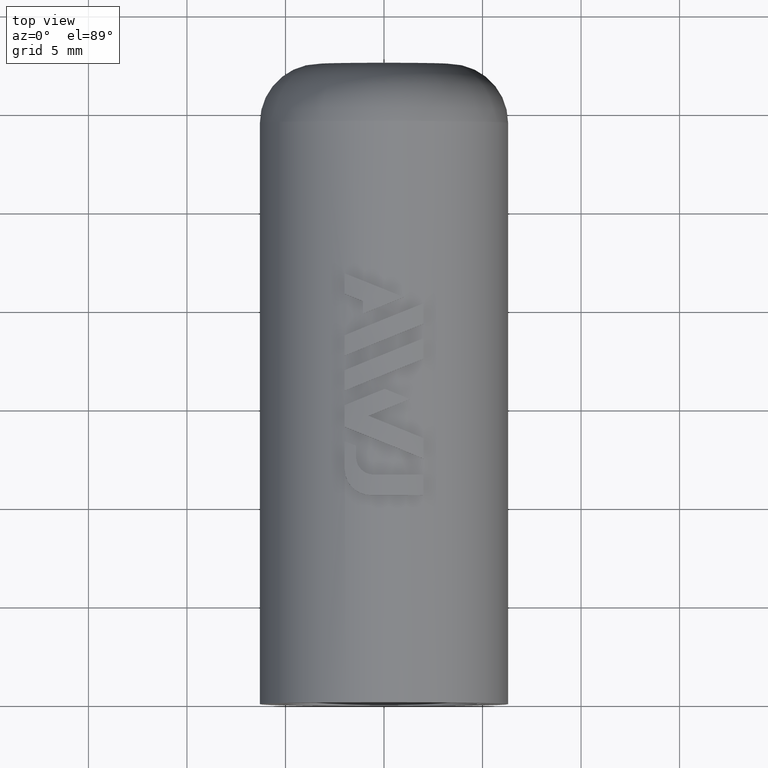
[diagram: clean part render]
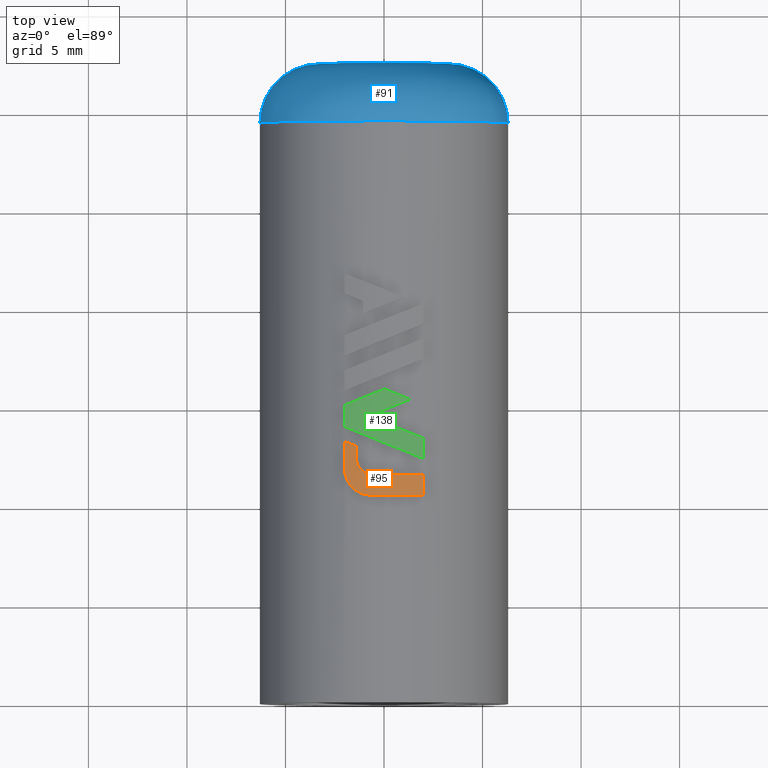
[diagram: same view with three faces highlighted in distinct colors, each labeled with its STEP entity id]
A machine part, top view with three faces highlighted in distinct colors.
Their STEP definitions:

[orange] entity #95 — the highlighted cylindrical surface (partial cylindrical patch) has radius 6.5 mm, axis along (-0, 1, 0).
#95=ADVANCED_FACE('',(#191),#192,.T.);
#191=FACE_OUTER_BOUND('',#2262,.T.);
#192=CYLINDRICAL_SURFACE('',#2263,6.5);
#2262=EDGE_LOOP('',(#2482,#2483,#2484,#2485,#2486,#2487,#2488,#2489,#2490,#2491,#2492,#2493,#2494,#2495,#2496,#2497,#2498,#2499,#2500,#2501,#2502,#2503,#2504,#2505,#2506,#2507,#2508,#2509,#2510,#2511,#2512,#2513,#2514,#2515,#2516,#2517,#2518,#2519,#2520,#2521));
#2263=AXIS2_PLACEMENT_3D('',#2522,#2523,#2524);
#2482=ORIENTED_EDGE('',*,*,#3117,.T.);
#2483=ORIENTED_EDGE('',*,*,#3118,.T.);
#2484=ORIENTED_EDGE('',*,*,#3119,.T.);
#2485=ORIENTED_EDGE('',*,*,#3120,.T.);
#2486=ORIENTED_EDGE('',*,*,#3121,.T.);
#2487=ORIENTED_EDGE('',*,*,#3122,.T.);
#2488=ORIENTED_EDGE('',*,*,#3123,.T.);
#2489=ORIENTED_EDGE('',*,*,#3124,.T.);
#2490=ORIENTED_EDGE('',*,*,#3125,.T.);
#2491=ORIENTED_EDGE('',*,*,#3126,.T.);
#2492=ORIENTED_EDGE('',*,*,#3127,.T.);
#2493=ORIENTED_EDGE('',*,*,#3128,.T.);
#2494=ORIENTED_EDGE('',*,*,#3129,.T.);
#2495=ORIENTED_EDGE('',*,*,#3130,.T.);
#2496=ORIENTED_EDGE('',*,*,#3131,.T.);
#2497=ORIENTED_EDGE('',*,*,#3132,.T.);
#2498=ORIENTED_EDGE('',*,*,#3133,.T.);
#2499=ORIENTED_EDGE('',*,*,#3134,.T.);
#2500=ORIENTED_EDGE('',*,*,#3135,.T.);
#2501=ORIENTED_EDGE('',*,*,#3136,.T.);
#2502=ORIENTED_EDGE('',*,*,#3137,.T.);
#2503=ORIENTED_EDGE('',*,*,#3138,.T.);
#2504=ORIENTED_EDGE('',*,*,#3139,.T.);
#2505=ORIENTED_EDGE('',*,*,#3140,.T.);
#2506=ORIENTED_EDGE('',*,*,#3141,.T.);
#2507=ORIENTED_EDGE('',*,*,#3142,.T.);
#2508=ORIENTED_EDGE('',*,*,#3143,.T.);
#2509=ORIENTED_EDGE('',*,*,#3144,.T.);
#2510=ORIENTED_EDGE('',*,*,#3145,.T.);
#2511=ORIENTED_EDGE('',*,*,#3146,.T.);
#2512=ORIENTED_EDGE('',*,*,#3147,.T.);
#2513=ORIENTED_EDGE('',*,*,#3148,.T.);
#2514=ORIENTED_EDGE('',*,*,#3149,.T.);
#2515=ORIENTED_EDGE('',*,*,#3150,.T.);
#2516=ORIENTED_EDGE('',*,*,#3151,.T.);
#2517=ORIENTED_EDGE('',*,*,#3152,.T.);
#2518=ORIENTED_EDGE('',*,*,#3153,.T.);
#2519=ORIENTED_EDGE('',*,*,#3154,.T.);
#2520=ORIENTED_EDGE('',*,*,#3155,.T.);
#2521=ORIENTED_EDGE('',*,*,#3156,.T.);
#2522=CARTESIAN_POINT('',(0.0,28.0866064046907,0.0));
#2523=DIRECTION('',(-0.0,1.0,0.0));
#2524=DIRECTION('',(1.0,0.0,-6.12323399573677E-17));
#3117=EDGE_CURVE('',#3350,#3351,#3352,.T.);
#3118=EDGE_CURVE('',#3351,#3353,#3354,.T.);
#3119=EDGE_CURVE('',#3353,#3355,#3356,.T.);
#3120=EDGE_CURVE('',#3355,#3357,#3358,.T.);
#3121=EDGE_CURVE('',#3357,#3359,#3360,.T.);
#3122=EDGE_CURVE('',#3359,#3361,#3362,.T.);
#3123=EDGE_CURVE('',#3361,#3363,#3364,.T.);
#3124=EDGE_CURVE('',#3363,#3365,#3366,.T.);
#3125=EDGE_CURVE('',#3365,#3367,#3368,.T.);
#3126=EDGE_CURVE('',#3367,#3369,#3370,.T.);
#3127=EDGE_CURVE('',#3369,#3371,#3372,.T.);
#3128=EDGE_CURVE('',#3371,#3373,#3374,.T.);
#3129=EDGE_CURVE('',#3373,#3375,#3376,.T.);
#3130=EDGE_CURVE('',#3375,#3377,#3378,.T.);
#3131=EDGE_CURVE('',#3377,#3379,#3380,.T.);
#3132=EDGE_CURVE('',#3379,#3381,#3382,.T.);
#3133=EDGE_CURVE('',#3381,#3383,#3384,.T.);
#3134=EDGE_CURVE('',#3383,#3385,#3386,.T.);
#3135=EDGE_CURVE('',#3385,#3387,#3388,.T.);
#3136=EDGE_CURVE('',#3387,#3389,#3390,.F.);
#3137=EDGE_CURVE('',#3389,#3391,#3392,.T.);
#3138=EDGE_CURVE('',#3391,#3393,#3394,.T.);
#3139=EDGE_CURVE('',#3393,#3395,#3396,.T.);
#3140=EDGE_CURVE('',#3395,#3397,#3398,.T.);
#3141=EDGE_CURVE('',#3397,#3399,#3400,.F.);
#3142=EDGE_CURVE('',#3399,#3401,#3402,.T.);
#3143=EDGE_CURVE('',#3401,#3403,#3404,.T.);
#3144=EDGE_CURVE('',#3403,#3405,#3406,.T.);
#3145=EDGE_CURVE('',#3405,#3407,#3408,.T.);
#3146=EDGE_CURVE('',#3407,#3409,#3410,.T.);
#3147=EDGE_CURVE('',#3409,#3411,#3412,.T.);
#3148=EDGE_CURVE('',#3411,#3413,#3414,.T.);
#3149=EDGE_CURVE('',#3413,#3415,#3416,.T.);
#3150=EDGE_CURVE('',#3415,#3417,#3418,.T.);
#3151=EDGE_CURVE('',#3417,#3419,#3420,.T.);
#3152=EDGE_CURVE('',#3419,#3421,#3422,.T.);
#3153=EDGE_CURVE('',#3421,#3423,#3424,.T.);
#3154=EDGE_CURVE('',#3423,#3425,#3426,.T.);
#3155=EDGE_CURVE('',#3425,#3427,#3428,.T.);
#3156=EDGE_CURVE('',#3427,#3350,#3429,.T.);
#3350=VERTEX_POINT('',#4678);
#3351=VERTEX_POINT('',#4679);
#3352=ELLIPSE('',#4680,8.49863708992697,6.5);
#3353=VERTEX_POINT('',#4681);
#3354=ELLIPSE('',#4682,8.87604108419772,6.5);
#3355=VERTEX_POINT('',#4683);
#3356=ELLIPSE('',#4684,9.30710297147765,6.5);
#3357=VERTEX_POINT('',#4685);
#3358=ELLIPSE('',#4686,9.80424687564299,6.50000000000001);
#3359=VERTEX_POINT('',#4687);
#3360=ELLIPSE('',#4688,10.3832715920736,6.5);
#3361=VERTEX_POINT('',#4689);
#3362=ELLIPSE('',#4690,11.0674867645227,6.5);
#3363=VERTEX_POINT('',#4691);
#3364=ELLIPSE('',#4692,11.8884586706871,6.49999999999999);
#3365=VERTEX_POINT('',#4693);
#3366=ELLIPSE('',#4694,12.8857433745928,6.50000000000001);
#3367=VERTEX_POINT('',#4695);
#3368=ELLIPSE('',#4696,14.0881170116164,6.5);
#3369=VERTEX_POINT('',#4697);
#3370=ELLIPSE('',#4698,15.5606394455165,6.5);
#3371=VERTEX_POINT('',#4699);
#3372=ELLIPSE('',#4700,17.4125475847105,6.5);
#3373=VERTEX_POINT('',#4701);
#3374=ELLIPSE('',#4702,19.8198450702379,6.5);
#3375=VERTEX_POINT('',#4703);
#3376=ELLIPSE('',#4704,23.0910708521155,6.5);
#3377=VERTEX_POINT('',#4705);
#3378=ELLIPSE('',#4706,27.8076715999877,6.5);
#3379=VERTEX_POINT('',#4707);
#3380=ELLIPSE('',#4708,34.4769094257683,6.5);
#3381=VERTEX_POINT('',#4709);
#3382=ELLIPSE('',#4710,44.2322560217673,6.5);
#3383=VERTEX_POINT('',#4711);
#3384=ELLIPSE('',#4712,61.7276858406329,6.50000000000001);
#3385=VERTEX_POINT('',#4713);
#3386=ELLIPSE('',#4714,102.461237753401,6.5);
#3387=VERTEX_POINT('',#4715);
#3388=ELLIPSE('',#4716,305.852001261228,6.5);
#3389=VERTEX_POINT('',#4717);
#3390=LINE('',#4718,#4719);
#3391=VERTEX_POINT('',#4720);
#3392=ELLIPSE('',#4721,7.01047367788307,6.5);
#3393=VERTEX_POINT('',#4722);
#3394=B_SPLINE_CURVE_WITH_KNOTS('',3,(#4723,#4724,#4725,#4726),.UNSPECIFIED.,.F.,.F.,(4,4),(0.00664969342187071,0.00805175004251819),.UNSPECIFIED.);
#3395=VERTEX_POINT('',#4727);
#3396=B_SPLINE_CURVE_WITH_KNOTS('',3,(#4728,#4729,#4730,#4731,#4732,#4733,#4734,#4735,#4736,#4737,#4738,#4739),.UNSPECIFIED.,.F.,.F.,(4,2,2,2,2,4),(0.0,0.000262952759191335,0.00052590551838267,0.00105181103676534,0.00157771655514801,0.00210362207353068),.UNSPECIFIED.);
#3397=VERTEX_POINT('',#4740);
#3398=CIRCLE('',#4741,6.5);
#3399=VERTEX_POINT('',#4742);
#3400=LINE('',#4743,#4744);
#3401=VERTEX_POINT('',#4745);
#3402=CIRCLE('',#4746,6.5);
#3403=VERTEX_POINT('',#4747);
#3404=ELLIPSE('',#4748,6.50197901420652,6.5);
#3405=VERTEX_POINT('',#4749);
#3406=ELLIPSE('',#4750,6.51758846871123,6.5);
#3407=VERTEX_POINT('',#4751);
#3408=ELLIPSE('',#4752,6.54842185509934,6.5);
#3409=VERTEX_POINT('',#4753);
#3410=ELLIPSE('',#4754,6.59456529149841,6.5);
#3411=VERTEX_POINT('',#4755);
#3412=ELLIPSE('',#4756,6.65667590412895,6.5);
#3413=VERTEX_POINT('',#4757);
#3414=ELLIPSE('',#4758,6.73598044171531,6.5);
#3415=VERTEX_POINT('',#4759);
#3416=ELLIPSE('',#4760,6.83421898185138,6.5);
#3417=VERTEX_POINT('',#4761);
#3418=ELLIPSE('',#4762,6.95320854391432,6.5);
#3419=VERTEX_POINT('',#4763);
#3420=ELLIPSE('',#4764,7.09194103188789,6.50000000000001);
#3421=VERTEX_POINT('',#4765);
#3422=ELLIPSE('',#4766,7.25186871939779,6.5);
#3423=VERTEX_POINT('',#4767);
#3424=ELLIPSE('',#4768,7.43533317982968,6.49999999999999);
#3425=VERTEX_POINT('',#4769);
#3426=ELLIPSE('',#4770,7.64612368532744,6.5);
#3427=VERTEX_POINT('',#4771);
#3428=ELLIPSE('',#4772,7.88902384504129,6.5);
#3429=ELLIPSE('',#4773,8.16992629532286,6.5);
#4678=CARTESIAN_POINT('',(-1.08494361551393,11.7359629039429,6.4088140362438));
#4679=CARTESIAN_POINT('',(-1.11797978136508,11.7637900809713,6.40313370221635));
#4680=AXIS2_PLACEMENT_3D('',#5139,#5140,#5141);
#4681=CARTESIAN_POINT('',(-1.14971525479996,11.7933008728417,6.39751161256314));
#4682=AXIS2_PLACEMENT_3D('',#5142,#5143,#5144);
#4683=CARTESIAN_POINT('',(-1.18005052929494,11.8243886654218,6.39198566552763));
#4684=AXIS2_PLACEMENT_3D('',#5145,#5146,#5147);
#4685=CARTESIAN_POINT('',(-1.20888254452194,11.8569459561279,6.38659557147234));
#4686=AXIS2_PLACEMENT_3D('',#5148,#5149,#5150);
#4687=CARTESIAN_POINT('',(-1.23611090550624,11.8908643539253,6.38138149849142));
#4688=AXIS2_PLACEMENT_3D('',#5151,#5152,#5153);
#4689=CARTESIAN_POINT('',(-1.26163432882194,11.9260381331327,6.37638446302746));
#4690=AXIS2_PLACEMENT_3D('',#5154,#5155,#5156);
#4691=CARTESIAN_POINT('',(-1.28535153104322,11.9623589027153,6.37164589738357));
#4692=AXIS2_PLACEMENT_3D('',#5157,#5158,#5159);
#4693=CARTESIAN_POINT('',(-1.30714701352656,11.9996667414745,6.36721027491857));
#4694=AXIS2_PLACEMENT_3D('',#5160,#5161,#5162);
#4695=CARTESIAN_POINT('',(-1.32716914760629,12.0381677700663,6.36306703199345));
#4696=AXIS2_PLACEMENT_3D('',#5163,#5164,#5165);
#4697=CARTESIAN_POINT('',(-1.34535129944965,12.0777153940586,6.35924758765289));
#4698=AXIS2_PLACEMENT_3D('',#5166,#5167,#5168);
#4699=CARTESIAN_POINT('',(-1.36162772367494,12.1181656843727,6.35578240204302));
#4700=AXIS2_PLACEMENT_3D('',#5169,#5170,#5171);
#4701=CARTESIAN_POINT('',(-1.37593267490044,12.1593720465762,6.35270094323204));
#4702=AXIS2_PLACEMENT_3D('',#5172,#5173,#5174);
#4703=CARTESIAN_POINT('',(-1.38820040774447,12.2011905515904,6.35003146668881));
#4704=AXIS2_PLACEMENT_3D('',#5175,#5176,#5177);
#4705=CARTESIAN_POINT('',(-1.39836606527645,12.2434754934342,6.34780059134526));
#4706=AXIS2_PLACEMENT_3D('',#5178,#5179,#5180);
#4707=CARTESIAN_POINT('',(-1.40541770168889,12.2802076158779,6.34624306844447));
#4708=AXIS2_PLACEMENT_3D('',#5181,#5182,#5183);
#4709=CARTESIAN_POINT('',(-1.41092521008258,12.3172791266434,6.34502088661286));
#4710=AXIS2_PLACEMENT_3D('',#5184,#5185,#5186);
#4711=CARTESIAN_POINT('',(-1.41487526369097,12.3545825231472,6.34414123331089));
#4712=AXIS2_PLACEMENT_3D('',#5187,#5188,#5189);
#4713=CARTESIAN_POINT('',(-1.41725453574745,12.3920120797071,6.34361013783975));
#4714=AXIS2_PLACEMENT_3D('',#5190,#5191,#5192);
#4715=CARTESIAN_POINT('',(-1.41805058793666,12.4294611821922,6.34343223578943));
#4716=AXIS2_PLACEMENT_3D('',#5193,#5194,#5195);
#4717=CARTESIAN_POINT('',(-1.41805058793666,12.9969353366924,6.34343223578943));
#4718=CARTESIAN_POINT('',(-1.41805058793666,28.0866064046907,6.34343223578943));
#4719=VECTOR('',#5196,1000.0);
#4720=CARTESIAN_POINT('',(-1.999014984,13.2316596761136,6.1849768870824));
#4721=AXIS2_PLACEMENT_3D('',#5197,#5198,#5199);
#4722=CARTESIAN_POINT('',(-1.99901497584797,11.8296030554662,6.18497688971717));
#4723=CARTESIAN_POINT('',(-1.999014984,13.2316596761136,6.1849768870824));
#4724=CARTESIAN_POINT('',(-1.99901498128266,12.7643074692311,6.18497688796066));
#4725=CARTESIAN_POINT('',(-1.99901497856532,12.2969552623487,6.18497688883892));
#4726=CARTESIAN_POINT('',(-1.99901497584797,11.8296030554662,6.18497688971717));
#4727=CARTESIAN_POINT('',(-0.666338327999999,10.4969263289512,6.46575542629306));
#4728=CARTESIAN_POINT('',(-1.99901497584797,11.8296030554662,6.18497688971717));
#4729=CARTESIAN_POINT('',(-1.99900514043553,11.7406527569976,6.18498006857089));
#4730=CARTESIAN_POINT('',(-1.99006364436262,11.6533268049881,6.18788926879649));
#4731=CARTESIAN_POINT('',(-1.95560808891911,11.4816765714526,6.19886472783967));
#4732=CARTESIAN_POINT('',(-1.92963804329477,11.3964247046827,6.20707186061483));
#4733=CARTESIAN_POINT('',(-1.8284254105172,11.1542900131624,6.23793529639757));
#4734=CARTESIAN_POINT('',(-1.72891754189279,11.0070619269589,6.26711855588369));
#4735=CARTESIAN_POINT('',(-1.48431515240043,10.7635026882458,6.32951336111401));
#4736=CARTESIAN_POINT('',(-1.33686858154042,10.665082886837,6.36310404697844));
#4737=CARTESIAN_POINT('',(-1.01782305653641,10.5325969076972,6.42186475586073));
#4738=CARTESIAN_POINT('',(-0.843127816765345,10.4969458873544,6.44753611476871));
#4739=CARTESIAN_POINT('',(-0.666338327999999,10.4969263289512,6.46575542629306));
#4740=CARTESIAN_POINT('',(1.99609020296564,10.4969263289512,6.18592142704905));
#4741=AXIS2_PLACEMENT_3D('',#5200,#5201,#5202);
#4742=CARTESIAN_POINT('',(1.99609020296564,11.5410100781922,6.18592142704905));
#4743=CARTESIAN_POINT('',(1.99609020296564,28.0866064046907,6.18592142704905));
#4744=VECTOR('',#5203,1000.0);
#4745=CARTESIAN_POINT('',(-0.529599483936665,11.5410100781922,6.47838902711269));
#4746=AXIS2_PLACEMENT_3D('',#5204,#5205,#5206);
#4747=CARTESIAN_POINT('',(-0.572548987206241,11.5420700003593,6.47473456268665));
#4748=AXIS2_PLACEMENT_3D('',#5207,#5208,#5209);
#4749=CARTESIAN_POINT('',(-0.61547805610041,11.5452302209362,6.47079490962732));
#4750=AXIS2_PLACEMENT_3D('',#5210,#5211,#5212);
#4751=CARTESIAN_POINT('',(-0.658240984638124,11.5504596441343,6.46658478689815));
#4752=AXIS2_PLACEMENT_3D('',#5213,#5214,#5215);
#4753=CARTESIAN_POINT('',(-0.700692066838359,11.557727174165,6.46212276480954));
#4754=AXIS2_PLACEMENT_3D('',#5216,#5217,#5218);
#4755=CARTESIAN_POINT('',(-0.74268470826893,11.5670026036908,6.45743133328598));
#4756=AXIS2_PLACEMENT_3D('',#5219,#5220,#5221);
#4757=CARTESIAN_POINT('',(-0.784072314497657,11.5782557253741,6.45253675740311));
#4758=AXIS2_PLACEMENT_3D('',#5222,#5223,#5224);
#4759=CARTESIAN_POINT('',(-0.824709179543507,11.591453666524,6.44746886531271));
#4760=AXIS2_PLACEMENT_3D('',#5225,#5226,#5227);
#4761=CARTESIAN_POINT('',(-0.864587307346559,11.6066026462983,6.44224252787609));
#4762=AXIS2_PLACEMENT_3D('',#5228,#5229,#5230);
#4763=CARTESIAN_POINT('',(-0.903767112581846,11.6236999993437,6.43686297867334));
#4764=AXIS2_PLACEMENT_3D('',#5231,#5232,#5233);
#4765=CARTESIAN_POINT('',(-0.942126877448157,11.642676426474,6.43136042737381));
#4766=AXIS2_PLACEMENT_3D('',#5234,#5235,#5236);
#4767=CARTESIAN_POINT('',(-0.97954577259531,11.6634599631499,6.4257676645978));
#4768=AXIS2_PLACEMENT_3D('',#5237,#5238,#5239);
#4769=CARTESIAN_POINT('',(-1.01590296867321,11.6859821986363,6.42012002677839));
#4770=AXIS2_PLACEMENT_3D('',#5240,#5241,#5242);
#4771=CARTESIAN_POINT('',(-1.05107585942947,11.7101738337471,6.41445551373806));
#4772=AXIS2_PLACEMENT_3D('',#5243,#5244,#5245);
#4773=AXIS2_PLACEMENT_3D('',#5246,#5247,#5248);
#5139=CARTESIAN_POINT('',(0.0,10.8220881464799,0.0));
#5140=DIRECTION('',(-0.644233917102604,-0.764828516763487,1.7293207651872E-17));
#5141=DIRECTION('',(0.764828516763487,-0.644233917102604,-2.0530335344573E-17));
#5142=CARTESIAN_POINT('',(0.0,10.7241815586358,0.0));
#5143=DIRECTION('',(-0.680973065297789,-0.732308462561326,3.22649719686939E-17));
#5144=DIRECTION('',(0.732308462561326,-0.680973065297789,-3.46972783815554E-17));
#5145=CARTESIAN_POINT('',(0.0,10.6150649754453,0.0));
#5146=DIRECTION('',(-0.715716112426683,-0.6983913275613,4.70044838157135E-17));
#5147=DIRECTION('',(0.6983913275613,-0.715716112426683,-4.58666827299526E-17));
#5148=CARTESIAN_POINT('',(0.0,10.4918682769708,0.0));
#5149=DIRECTION('',(-0.748638877900145,-0.662978001517706,6.15730104064028E-17));
#5150=DIRECTION('',(0.662978001517706,-0.748638877900146,-5.45276936473911E-17));
#5151=CARTESIAN_POINT('',(0.0,10.35103970422,0.0));
#5152=DIRECTION('',(-0.779817491661589,-0.626006932628247,7.60005039385174E-17));
#5153=DIRECTION('',(0.626006932628247,-0.779817491661589,-6.10102272101878E-17));
#5154=CARTESIAN_POINT('',(0.0,10.1873823590424,0.0));
#5155=DIRECTION('',(-0.809365065349924,-0.587305875154602,9.03463076134909E-17));
#5156=DIRECTION('',(0.587305875154602,-0.809365065349924,-6.55586947491829E-17));
#5157=CARTESIAN_POINT('',(0.0,9.99395823065788,0.0));
#5158=DIRECTION('',(-0.837296719685793,-0.546748756929003,1.04637283103513E-16));
#5159=DIRECTION('',(0.546748756929003,-0.837296719685793,-6.8327395916161E-17));
#5160=CARTESIAN_POINT('',(0.0,9.7621925285283,0.0));
#5161=DIRECTION('',(-0.86345057382886,-0.504433451066255,1.18815804269084E-16));
#5162=DIRECTION('',(0.504433451066255,-0.86345057382886,-6.9412967001567E-17));
#5163=CARTESIAN_POINT('',(0.0,9.4861232629872,0.0));
#5164=DIRECTION('',(-0.887201716676645,-0.461381744248745,1.32541125383081E-16));
#5165=DIRECTION('',(0.461381744248745,-0.887201716676645,-6.89268905418781E-17));
#5166=CARTESIAN_POINT('',(0.0,9.15146949166899,0.0));
#5167=DIRECTION('',(-0.908575523171427,-0.417720622777674,1.45796135022602E-16));
#5168=DIRECTION('',(0.417720622777674,-0.908575523171427,-6.70302586488766E-17));
#5169=CARTESIAN_POINT('',(0.0,8.73423835734252,0.0));
#5170=DIRECTION('',(-0.927713085904695,-0.373294026527599,1.58644056312303E-16));
#5171=DIRECTION('',(0.373294026527599,-0.927713085904695,-6.38353381721886E-17));
#5172=CARTESIAN_POINT('',(0.0,8.19590658096145,0.0));
#5173=DIRECTION('',(-0.944693648842252,-0.327954127641522,1.7113145226468E-16));
#5174=DIRECTION('',(0.327954127641522,-0.944693648842252,-5.94089588812949E-17));
#5175=CARTESIAN_POINT('',(0.0,7.46906388645991,0.0));
#5176=DIRECTION('',(-0.959562961313936,-0.281494091011569,1.83307521509309E-16));
#5177=DIRECTION('',(0.281494091011569,-0.959562961313936,-5.37744642333738E-17));
#5178=CARTESIAN_POINT('',(0.0,6.42684950927554,0.0));
#5179=DIRECTION('',(-0.972297107053995,-0.233748445159388,1.95196802105921E-16));
#5180=DIRECTION('',(0.233748445159388,-0.972297107053995,-4.69269615854262E-17));
#5181=CARTESIAN_POINT('',(0.0,4.95935723681178,0.0));
#5182=DIRECTION('',(-0.982067050918069,-0.188531980048707,2.0589550498577E-16));
#5183=DIRECTION('',(0.188531980048707,-0.982067050918069,-3.95267178567972E-17));
#5184=CARTESIAN_POINT('',(0.0,2.82022067916331,0.0));
#5185=DIRECTION('',(-0.989143686495174,-0.14695158204911,2.15266652190925E-16));
#5186=DIRECTION('',(0.14695158204911,-0.989143686495174,-3.19809705442895E-17));
#5187=CARTESIAN_POINT('',(0.0,-1.00717359397395,0.0));
#5188=DIRECTION('',(-0.994440372875625,-0.105301209845798,2.24214709204642E-16));
#5189=DIRECTION('',(0.105301209845798,-0.994440372875624,-2.37420772410912E-17));
#5190=CARTESIAN_POINT('',(0.0,-9.90355040586218,0.0));
#5191=DIRECTION('',(-0.997985741835146,-0.0634386246205995,2.32772816483988E-16));
#5192=DIRECTION('',(0.0634386246205995,-0.997985741835146,-1.47965914820121E-17));
#5193=CARTESIAN_POINT('',(0.0,-54.2806396348984,0.0));
#5194=DIRECTION('',(-0.999774148431832,-0.0212521087754739,2.40960112986093E-16));
#5195=DIRECTION('',(0.0212521087754739,-0.999774148431832,-5.12206735867615E-18));
#5196=DIRECTION('',(0.0,-1.0,0.0));
#5197=CARTESIAN_POINT('',(0.0,12.4240069614342,0.0));
#5198=DIRECTION('',(-0.374605889774889,-0.927184138855904,-7.8567145134265E-17));
#5199=DIRECTION('',(0.927184138855904,-0.374605889774889,1.94460932921946E-16));
#5200=CARTESIAN_POINT('',(0.0,10.4969263289512,0.0));
#5201=DIRECTION('',(1.11022302462516E-16,1.0,1.83690953073356E-16));
#5202=DIRECTION('',(-6.12323399573677E-17,1.83690953073356E-16,-1.0));
#5203=DIRECTION('',(0.0,-1.0,0.0));
#5204=CARTESIAN_POINT('',(0.0,11.5410100781922,0.0));
#5205=DIRECTION('',(-1.12478268856806E-32,-1.0,-1.83690953073356E-16));
#5206=DIRECTION('',(6.12323399573677E-17,-1.83690953073356E-16,1.0));
#5207=CARTESIAN_POINT('',(0.0,11.5279404454849,0.0));
#5208=DIRECTION('',(-0.0246708221697402,-0.999695628945865,-1.77592683638689E-16));
#5209=DIRECTION('',(0.999695628945865,-0.0246708221697402,7.19629967517344E-15));
#5210=CARTESIAN_POINT('',(0.0,11.4999218444062,0.0));
#5211=DIRECTION('',(-0.0734162756428465,-0.997301383971131,-1.6521418266505E-16));
#5212=DIRECTION('',(0.997301383971131,-0.0734162756428465,2.24430252802627E-15));
#5213=CARTESIAN_POINT('',(0.0,11.4699642058484,0.0));
#5214=DIRECTION('',(-0.121384450630639,-0.992605568765911,-1.52603274524705E-16));
#5215=DIRECTION('',(0.992605568765911,-0.121384450630639,1.24789344366734E-15));
#5216=CARTESIAN_POINT('',(0.0,11.4377702643738,0.0));
#5217=DIRECTION('',(-0.168742800716728,-0.985660117487907,-1.39728486446723E-16));
#5218=DIRECTION('',(0.985660117487907,-0.168742800716728,8.16181761725563E-16));
#5219=CARTESIAN_POINT('',(0.0,11.4029567271577,0.0));
#5220=DIRECTION('',(-0.215683429399358,-0.976463342006515,-1.26542458492361E-16));
#5221=DIRECTION('',(0.976463342006515,-0.215683429399357,5.72895526880654E-16));
#5222=CARTESIAN_POINT('',(0.0,11.365069654289,0.0));
#5223=DIRECTION('',(-0.262370646687063,-0.964967172372725,-1.12996117963059E-16));
#5224=DIRECTION('',(0.964967172372725,-0.262370646687063,4.15585911826334E-16));
#5225=CARTESIAN_POINT('',(0.0,11.3236066462106,0.0));
#5226=DIRECTION('',(-0.308894700261051,-0.951096243369006,-9.90535175559204E-17));
#5227=DIRECTION('',(0.951096243369006,-0.308894700261051,3.04988814506382E-16));
#5228=CARTESIAN_POINT('',(0.0,11.2781615595752,0.0));
#5229=DIRECTION('',(-0.355121303699925,-0.934820228524429,-8.47419759020089E-17));
#5230=DIRECTION('',(0.934820228524429,-0.355121303699925,2.23074516941024E-16));
#5231=CARTESIAN_POINT('',(0.0,11.2293125004314,0.0));
#5232=DIRECTION('',(-0.399958423246435,-0.916533283451412,-7.04013559085903E-17));
#5233=DIRECTION('',(0.916533283451412,-0.399958423246435,1.61329733642275E-16));
#5234=CARTESIAN_POINT('',(0.0,11.1766099086076,0.0));
#5235=DIRECTION('',(-0.443406376070304,-0.896320693535634,-5.60472460484717E-17));
#5236=DIRECTION('',(0.896320693535634,-0.443406376070304,1.13296310472909E-16));
#5237=CARTESIAN_POINT('',(0.0,11.1193919084847,0.0));
#5238=DIRECTION('',(-0.48555833610978,-0.874204268025672,-4.16608323923751E-17));
#5239=DIRECTION('',(0.874204268025672,-0.48555833610978,7.50065950441889E-17));
#5240=CARTESIAN_POINT('',(0.0,11.0566595786309,0.0));
#5241=DIRECTION('',(-0.526614909044742,-0.850103956920445,-2.71782782869481E-17));
#5242=DIRECTION('',(0.850103956920445,-0.526614909044742,4.38733532173063E-17));
#5243=CARTESIAN_POINT('',(0.0,10.9872521995456,0.0));
#5244=DIRECTION('',(-0.566692216965166,-0.823929566911581,-1.25545755024036E-17));
#5245=DIRECTION('',(0.823929566911581,-0.566692216965166,1.82534463096216E-17));
#5246=CARTESIAN_POINT('',(0.0,10.9098176172815,0.0));
#5247=DIRECTION('',(-0.605821216929007,-0.795600812668424,2.23260562953374E-18));
#5248=DIRECTION('',(0.795600812668424,-0.605821216929007,-2.93199182133183E-18));

[blue] entity #91 — the highlighted toroidal blend (fillet) surface has major radius 3.3 mm and minor (blend) radius 3 mm.
#91=ADVANCED_FACE('',(#183),#184,.T.);
#183=FACE_OUTER_BOUND('',#2254,.T.);
#184=TOROIDAL_SURFACE('',#2255,3.3,3.0);
#2254=EDGE_LOOP('',(#2456,#2457,#2458,#2459));
#2255=AXIS2_PLACEMENT_3D('',#2460,#2461,#2462);
#2456=ORIENTED_EDGE('',*,*,#3106,.F.);
#2457=ORIENTED_EDGE('',*,*,#3107,.T.);
#2458=ORIENTED_EDGE('',*,*,#3108,.F.);
#2459=ORIENTED_EDGE('',*,*,#3109,.F.);
#2460=CARTESIAN_POINT('',(0.0,29.5,0.0));
#2461=DIRECTION('',(0.0,-1.0,0.0));
#2462=DIRECTION('',(1.0,0.0,-6.12323399573677E-17));
#3106=EDGE_CURVE('',#3332,#3333,#3334,.T.);
#3107=EDGE_CURVE('',#3332,#3335,#3336,.T.);
#3108=EDGE_CURVE('',#3337,#3335,#3338,.T.);
#3109=EDGE_CURVE('',#3333,#3337,#3339,.T.);
#3332=VERTEX_POINT('',#4658);
#3333=VERTEX_POINT('',#4659);
#3334=CIRCLE('',#4660,3.0);
#3335=VERTEX_POINT('',#4661);
#3336=CIRCLE('',#4662,3.3);
#3337=VERTEX_POINT('',#4663);
#3338=CIRCLE('',#4664,3.0);
#3339=CIRCLE('',#4665,6.3);
#4658=CARTESIAN_POINT('',(3.3,32.5,-2.02066721859313E-16));
#4659=CARTESIAN_POINT('',(6.3,29.5,-3.85763741731417E-16));
#4660=AXIS2_PLACEMENT_3D('',#5110,#5111,#5112);
#4661=CARTESIAN_POINT('',(-3.3,32.5,6.0620016557794E-16));
#4662=AXIS2_PLACEMENT_3D('',#5113,#5114,#5115);
#4663=CARTESIAN_POINT('',(-6.3,29.5,-3.85763741731416E-16));
#4664=AXIS2_PLACEMENT_3D('',#5116,#5117,#5118);
#4665=AXIS2_PLACEMENT_3D('',#5119,#5120,#5121);
#5110=CARTESIAN_POINT('',(3.3,29.5,-6.0620016557794E-16));
#5111=DIRECTION('',(-1.83697019872103E-16,-0.0,-1.0));
#5112=DIRECTION('',(1.0,0.0,-1.83697019872103E-16));
#5113=CARTESIAN_POINT('',(0.0,32.5,0.0));
#5114=DIRECTION('',(0.0,-1.0,0.0));
#5115=DIRECTION('',(1.0,0.0,-6.12323399573677E-17));
#5116=CARTESIAN_POINT('',(-3.3,29.5,6.0620016557794E-16));
#5117=DIRECTION('',(-1.83697019872103E-16,0.0,-1.0));
#5118=DIRECTION('',(-1.0,0.0,1.83697019872103E-16));
#5119=CARTESIAN_POINT('',(0.0,29.5,0.0));
#5120=DIRECTION('',(0.0,-1.0,0.0));
#5121=DIRECTION('',(1.0,0.0,-6.12323399573677E-17));

[green] entity #138 — the highlighted cylindrical surface (partial cylindrical patch) has radius 6.5 mm, axis along (-0, 1, 0).
#138=ADVANCED_FACE('',(#282),#283,.T.);
#282=FACE_OUTER_BOUND('',#2353,.T.);
#283=CYLINDRICAL_SURFACE('',#2354,6.5);
#2353=EDGE_LOOP('',(#2879,#2880,#2881,#2882,#2883,#2884,#2885));
#2354=AXIS2_PLACEMENT_3D('',#2886,#2887,#2888);
#2879=ORIENTED_EDGE('',*,*,#3260,.F.);
#2880=ORIENTED_EDGE('',*,*,#3264,.F.);
#2881=ORIENTED_EDGE('',*,*,#3263,.F.);
#2882=ORIENTED_EDGE('',*,*,#3265,.F.);
#2883=ORIENTED_EDGE('',*,*,#3266,.F.);
#2884=ORIENTED_EDGE('',*,*,#3267,.F.);
#2885=ORIENTED_EDGE('',*,*,#3268,.F.);
#2886=CARTESIAN_POINT('',(0.0,30.4684084013991,0.0));
#2887=DIRECTION('',(-0.0,1.0,0.0));
#2888=DIRECTION('',(1.0,0.0,-6.12323399573677E-17));
#3260=EDGE_CURVE('',#3593,#3591,#3595,.F.);
#3263=EDGE_CURVE('',#3598,#3596,#3600,.T.);
#3264=EDGE_CURVE('',#3596,#3593,#3601,.T.);
#3265=EDGE_CURVE('',#3602,#3598,#3603,.T.);
#3266=EDGE_CURVE('',#3604,#3602,#3605,.T.);
#3267=EDGE_CURVE('',#3606,#3604,#3607,.T.);
#3268=EDGE_CURVE('',#3591,#3606,#3608,.T.);
#3591=VERTEX_POINT('',#4999);
#3593=VERTEX_POINT('',#5002);
#3595=LINE('',#5005,#5006);
#3596=VERTEX_POINT('',#5007);
#3598=VERTEX_POINT('',#5010);
#3600=LINE('',#5013,#5014);
#3601=ELLIPSE('',#5015,7.01042657307924,6.5);
#3602=VERTEX_POINT('',#5016);
#3603=ELLIPSE('',#5017,7.01059150792548,6.5);
#3604=VERTEX_POINT('',#5018);
#3605=ELLIPSE('',#5019,7.01052126533593,6.5);
#3606=VERTEX_POINT('',#5020);
#3607=ELLIPSE('',#5021,7.0103028129027,6.5);
#3608=ELLIPSE('',#5022,7.01064731053541,6.5);
#4999=CARTESIAN_POINT('',(-1.999014984,15.0657985695866,6.1849768870824));
#5002=CARTESIAN_POINT('',(-1.99901498400001,13.9744820943037,6.18497688708239));
#5005=CARTESIAN_POINT('',(-1.999014984,30.4684084013991,6.1849768870824));
#5006=VECTOR('',#5448,1000.0);
#5007=CARTESIAN_POINT('',(1.99609020296564,12.3604356390202,6.18592142704905));
#5010=CARTESIAN_POINT('',(1.99609020296564,13.3928113796127,6.18592142704906));
#5013=CARTESIAN_POINT('',(1.99609020296564,30.4684084013991,6.18592142704906));
#5014=VECTOR('',#5451,1000.0);
#5015=AXIS2_PLACEMENT_3D('',#5452,#5453,#5454);
#5016=CARTESIAN_POINT('',(-0.794100262108494,14.5202540536865,6.45131031448025));
#5017=AXIS2_PLACEMENT_3D('',#5455,#5456,#5457);
#5018=CARTESIAN_POINT('',(1.31421286515667,15.3721071913595,6.36575561461926));
#5019=AXIS2_PLACEMENT_3D('',#5458,#5459,#5460);
#5020=CARTESIAN_POINT('',(0.0363794073554954,15.8882946174301,6.49989819448893));
#5021=AXIS2_PLACEMENT_3D('',#5461,#5462,#5463);
#5022=AXIS2_PLACEMENT_3D('',#5464,#5465,#5466);
#5448=DIRECTION('',(0.0,-1.0,0.0));
#5451=DIRECTION('',(0.0,-1.0,0.0));
#5452=CARTESIAN_POINT('',(0.0,13.1668680521227,0.0));
#5453=DIRECTION('',(-0.374590469627021,-0.927190368837278,-7.85720662165088E-17));
#5454=DIRECTION('',(0.927190368837278,-0.374590469627021,1.9448242537545E-16));
#5455=CARTESIAN_POINT('',(0.0,14.1993789972338,0.0));
#5456=DIRECTION('',(0.37464445827513,0.927168555271227,7.85548364026486E-17));
#5457=DIRECTION('',(0.927168555271227,-0.37464445827513,1.94407184113542E-16));
#5458=CARTESIAN_POINT('',(0.0,14.8411062037566,0.0));
#5459=DIRECTION('',(0.374621466961797,-0.927177845125406,-2.62066190199174E-16));
#5460=DIRECTION('',(-0.927177845125406,-0.374621466961797,6.48606625455003E-16));
#5461=CARTESIAN_POINT('',(0.0,15.9029902669532,0.0));
#5462=DIRECTION('',(0.374549951201191,0.927206737494495,7.85849967331582E-17));
#5463=DIRECTION('',(0.927206737494495,-0.374549951201191,1.94538907836696E-16));
#5464=CARTESIAN_POINT('',(0.0,15.8735938209163,0.0));
#5465=DIRECTION('',(-0.374662721697119,0.927161175292898,2.62073232180524E-16));
#5466=DIRECTION('',(-0.927161175292898,-0.374662721697119,6.48540972693126E-16));